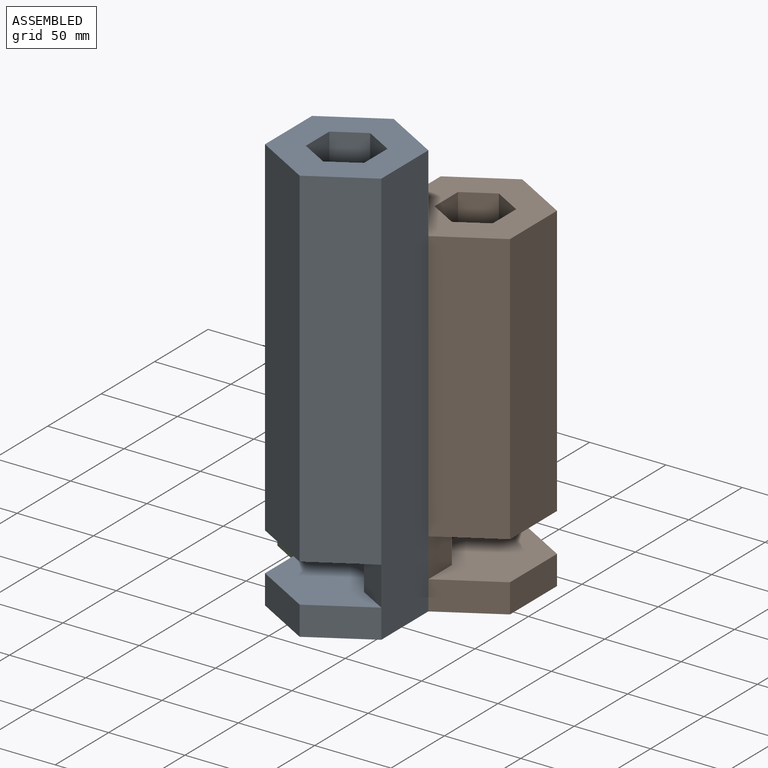
[diagram: assembled view]
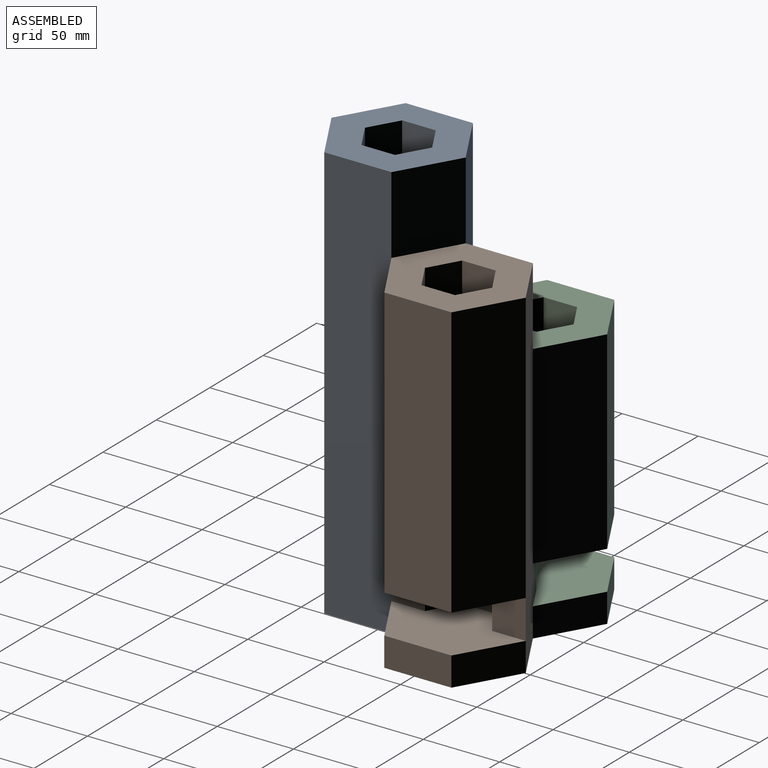
[diagram: assembled view, second angle]
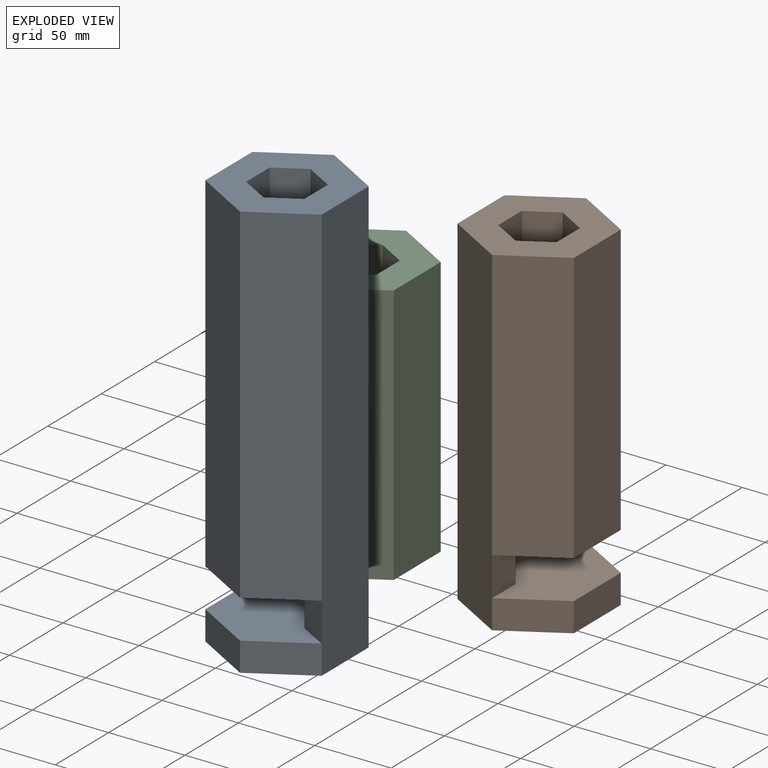
[diagram: exploded view]
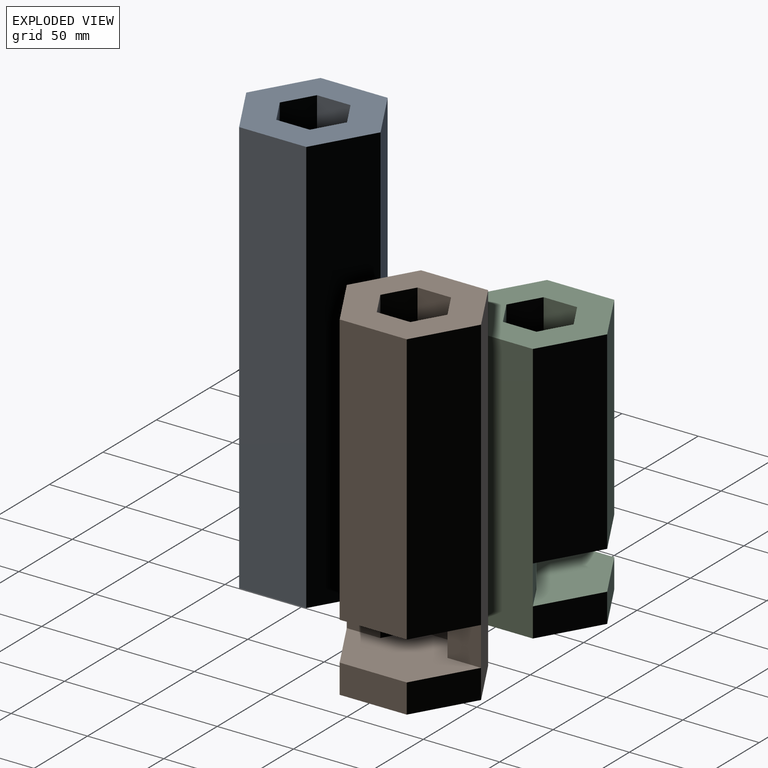
[diagram: exploded view, second angle]
ASSEMBLY  parts=3 mates=2
PART A: 29 faces, bbox 76.2x88x273.1 mm
  f0: plane 184.15x22mm, normal (-1,0,0), area 4050.8mm2, adj f1,f3,f24,f27
  f1: plane 184.15x19.05mm, normal (-0.5,0.87,0), area 4050.8mm2, adj f0,f2,f24,f27
  f2: plane 184.15x19.05mm, normal (0.5,0.87,0), area 4050.8mm2, adj f1,f4,f24,f27
  f3: plane 209.55x19.05mm, normal (-0.5,-0.87,0), area 4609.5mm2, adj f0,f5,f22,f25,f27
  f4: plane 209.55x22mm, normal (1,0,0), area 4609.5mm2, adj f2,f5,f22,f26,f27
  f5: plane 209.55x19.05mm, normal (0.5,-0.87,0), area 4609.5mm2, adj f3,f4,f22,f27
  f6: plane 228.6x38.1mm, normal (0.5,-0.87,0), area 10057mm2, adj f11,f13,f21,f24
  f7: plane 38.1x22mm, normal (0.5,-0.87,0), area 838.1mm2, adj f12,f14,f22,f23
  f8: plane 25.4x22mm, normal (-1,0,0), area 558.7mm2, adj f9,f15,f21,f28
  f9: plane 25.4x19.05mm, normal (-0.5,0.87,0), area 558.7mm2, adj f8,f10,f21,f28
  f10: plane 25.4x19.05mm, normal (0.5,0.87,0), area 558.7mm2, adj f9,f16,f21,f28
  f11: plane 228.6x43.99mm, normal (1,0,0), area 10057mm2, adj f6,f17,f21,f24
  f12: plane 43.99x19.05mm, normal (1,0,0), area 838.1mm2, adj f7,f17,f22,f23
  f13: plane 228.6x38.1mm, normal (-0.5,-0.87,0), area 10057mm2, adj f6,f19,f21,f24
  f14: plane 38.1x22mm, normal (-0.5,-0.87,0), area 838.1mm2, adj f7,f19,f22,f23
  f15: plane 25.4x19.05mm, normal (-0.5,-0.87,0), area 558.7mm2, adj f8,f20,f21,f28
  f16: plane 25.4x22mm, normal (1,0,0), area 558.7mm2, adj f10,f20,f21,f28
  f17: plane 273.05x38.1mm, normal (0.5,0.87,0), area 12012.6mm2, adj f11,f12,f18,f21,f23,f25
  f18: plane 273.05x38.1mm, normal (-0.5,0.87,0), area 12012.6mm2, adj f17,f19,f21,f23
  f19: plane 273.05x43.99mm, normal (-1,0,0), area 12012.6mm2, adj f13,f14,f18,f21,f23,f26
  f20: plane 25.4x19.05mm, normal (0.5,-0.87,0), area 558.7mm2, adj f15,f16,f21,f28
  f21: plane 87.99x76.2mm, normal (0,0,1), area 3771.4mm2, adj f6,f8,f9,f10,f11,f13,f15,f16
  f22: plane 76.2x65.99mm, normal (0,0,1), area 3142.8mm2, adj f3,f4,f5,f7,f12,f14,f25,f26
  f23: plane 87.99x76.2mm, normal (0,0,-1), area 5028.5mm2, adj f7,f12,f14,f17,f18,f19
  f24: plane 76.2x65.99mm, normal (0,0,-1), area 1885.7mm2, adj f0,f1,f2,f6,f11,f13,f25,f26
  f25: plane 25.4x19.05mm, normal (0.5,-0.87,0), area 558.7mm2, adj f3,f17,f22,f24
  f26: plane 25.4x19.05mm, normal (0.5,-0.87,0), area 558.7mm2, adj f4,f19,f22,f24
  f27: plane 43.99x38.1mm, normal (0,0,-1), area 1257.1mm2, adj f0,f1,f2,f3,f4,f5
  f28: plane 43.99x38.1mm, normal (0,0,1), area 1257.1mm2, adj f8,f9,f10,f15,f16,f20
PART B: 29 faces, bbox 76.2x88x222.3 mm
  f0: plane 133.35x22mm, normal (-1,0,0), area 2933.3mm2, adj f1,f3,f24,f27
  f1: plane 133.35x19.05mm, normal (-0.5,0.87,0), area 2933.3mm2, adj f0,f2,f24,f27
  f2: plane 133.35x19.05mm, normal (0.5,0.87,0), area 2933.3mm2, adj f1,f4,f24,f27
  f3: plane 158.75x19.05mm, normal (-0.5,-0.87,0), area 3492mm2, adj f0,f5,f22,f25,f27
  f4: plane 158.75x22mm, normal (1,0,0), area 3492mm2, adj f2,f5,f22,f26,f27
  f5: plane 158.75x19.05mm, normal (0.5,-0.87,0), area 3492mm2, adj f3,f4,f22,f27
  f6: plane 177.8x38.1mm, normal (0.5,-0.87,0), area 7822.1mm2, adj f11,f13,f21,f24
  f7: plane 38.1x22mm, normal (0.5,-0.87,0), area 838.1mm2, adj f12,f14,f22,f23
  f8: plane 25.4x22mm, normal (-1,0,0), area 558.7mm2, adj f9,f15,f21,f28
  f9: plane 25.4x19.05mm, normal (-0.5,0.87,0), area 558.7mm2, adj f8,f10,f21,f28
  f10: plane 25.4x19.05mm, normal (0.5,0.87,0), area 558.7mm2, adj f9,f16,f21,f28
  f11: plane 177.8x43.99mm, normal (1,0,0), area 7822.1mm2, adj f6,f17,f21,f24
  f12: plane 43.99x19.05mm, normal (1,0,0), area 838.1mm2, adj f7,f17,f22,f23
  f13: plane 177.8x38.1mm, normal (-0.5,-0.87,0), area 7822.1mm2, adj f6,f19,f21,f24
  f14: plane 38.1x22mm, normal (-0.5,-0.87,0), area 838.1mm2, adj f7,f19,f22,f23
  f15: plane 25.4x19.05mm, normal (-0.5,-0.87,0), area 558.7mm2, adj f8,f20,f21,f28
  f16: plane 25.4x22mm, normal (1,0,0), area 558.7mm2, adj f10,f20,f21,f28
  f17: plane 222.25x38.1mm, normal (0.5,0.87,0), area 9777.7mm2, adj f11,f12,f18,f21,f23,f25
  f18: plane 222.25x38.1mm, normal (-0.5,0.87,0), area 9777.7mm2, adj f17,f19,f21,f23
  f19: plane 222.25x43.99mm, normal (-1,0,0), area 9777.7mm2, adj f13,f14,f18,f21,f23,f26
  f20: plane 25.4x19.05mm, normal (0.5,-0.87,0), area 558.7mm2, adj f15,f16,f21,f28
  f21: plane 87.99x76.2mm, normal (0,0,1), area 3771.4mm2, adj f6,f8,f9,f10,f11,f13,f15,f16
  f22: plane 76.2x65.99mm, normal (0,0,1), area 3142.8mm2, adj f3,f4,f5,f7,f12,f14,f25,f26
  f23: plane 87.99x76.2mm, normal (0,0,-1), area 5028.5mm2, adj f7,f12,f14,f17,f18,f19
  f24: plane 76.2x65.99mm, normal (0,0,-1), area 1885.7mm2, adj f0,f1,f2,f6,f11,f13,f25,f26
  f25: plane 25.4x19.05mm, normal (0.5,-0.87,0), area 558.7mm2, adj f3,f17,f22,f24
  f26: plane 25.4x19.05mm, normal (0.5,-0.87,0), area 558.7mm2, adj f4,f19,f22,f24
  f27: plane 43.99x38.1mm, normal (0,0,-1), area 1257.1mm2, adj f0,f1,f2,f3,f4,f5
  f28: plane 43.99x38.1mm, normal (0,0,1), area 1257.1mm2, adj f8,f9,f10,f15,f16,f20
PART C: 29 faces, bbox 76.2x88x171.5 mm
  f0: plane 82.55x22mm, normal (-1,0,0), area 1815.9mm2, adj f1,f3,f24,f27
  f1: plane 82.55x19.05mm, normal (-0.5,0.87,0), area 1815.9mm2, adj f0,f2,f24,f27
  f2: plane 82.55x19.05mm, normal (0.5,0.87,0), area 1815.9mm2, adj f1,f4,f24,f27
  f3: plane 107.95x19.05mm, normal (-0.5,-0.87,0), area 2374.6mm2, adj f0,f5,f22,f25,f27
  f4: plane 107.95x22mm, normal (1,0,0), area 2374.6mm2, adj f2,f5,f22,f26,f27
  f5: plane 107.95x19.05mm, normal (0.5,-0.87,0), area 2374.6mm2, adj f3,f4,f22,f27
  f6: plane 127x38.1mm, normal (0.5,-0.87,0), area 5587.2mm2, adj f11,f13,f21,f24
  f7: plane 38.1x22mm, normal (0.5,-0.87,0), area 838.1mm2, adj f12,f14,f22,f23
  f8: plane 25.4x22mm, normal (-1,0,0), area 558.7mm2, adj f9,f15,f21,f28
  f9: plane 25.4x19.05mm, normal (-0.5,0.87,0), area 558.7mm2, adj f8,f10,f21,f28
  f10: plane 25.4x19.05mm, normal (0.5,0.87,0), area 558.7mm2, adj f9,f16,f21,f28
  f11: plane 127x43.99mm, normal (1,0,0), area 5587.2mm2, adj f6,f17,f21,f24
  f12: plane 43.99x19.05mm, normal (1,0,0), area 838.1mm2, adj f7,f17,f22,f23
  f13: plane 127x38.1mm, normal (-0.5,-0.87,0), area 5587.2mm2, adj f6,f19,f21,f24
  f14: plane 38.1x22mm, normal (-0.5,-0.87,0), area 838.1mm2, adj f7,f19,f22,f23
  f15: plane 25.4x19.05mm, normal (-0.5,-0.87,0), area 558.7mm2, adj f8,f20,f21,f28
  f16: plane 25.4x22mm, normal (1,0,0), area 558.7mm2, adj f10,f20,f21,f28
  f17: plane 171.45x38.1mm, normal (0.5,0.87,0), area 7542.8mm2, adj f11,f12,f18,f21,f23,f25
  f18: plane 171.45x38.1mm, normal (-0.5,0.87,0), area 7542.8mm2, adj f17,f19,f21,f23
  f19: plane 171.45x43.99mm, normal (-1,0,0), area 7542.8mm2, adj f13,f14,f18,f21,f23,f26
  f20: plane 25.4x19.05mm, normal (0.5,-0.87,0), area 558.7mm2, adj f15,f16,f21,f28
  f21: plane 87.99x76.2mm, normal (0,0,1), area 3771.4mm2, adj f6,f8,f9,f10,f11,f13,f15,f16
  f22: plane 76.2x65.99mm, normal (0,0,1), area 3142.8mm2, adj f3,f4,f5,f7,f12,f14,f25,f26
  f23: plane 87.99x76.2mm, normal (0,0,-1), area 5028.5mm2, adj f7,f12,f14,f17,f18,f19
  f24: plane 76.2x65.99mm, normal (0,0,-1), area 1885.7mm2, adj f0,f1,f2,f6,f11,f13,f25,f26
  f25: plane 25.4x19.05mm, normal (0.5,-0.87,0), area 558.7mm2, adj f3,f17,f22,f24
  f26: plane 25.4x19.05mm, normal (0.5,-0.87,0), area 558.7mm2, adj f4,f19,f22,f24
  f27: plane 43.99x38.1mm, normal (0,0,-1), area 1257.1mm2, adj f0,f1,f2,f3,f4,f5
  f28: plane 43.99x38.1mm, normal (0,0,1), area 1257.1mm2, adj f8,f9,f10,f15,f16,f20
PLACE A rot(axis=(0,0,-1),60deg) t=(20.64,-156.77,-85.7)mm
PLACE B rot(axis=(0,0,1),60deg) t=(58.74,-90.78,-85.7)mm
PLACE C rot(axis=(0,0,1),180deg) t=(-17.46,-90.78,-85.7)mm fixed
MATE fastened B.f18 <-> C.f19  axis (-1,0,0) through (20.64,-90.78,-104.75)mm
MATE fastened C.f18 <-> A.f19  axis (0.5,-0.87,0) through (1.59,-123.78,-104.75)mm
